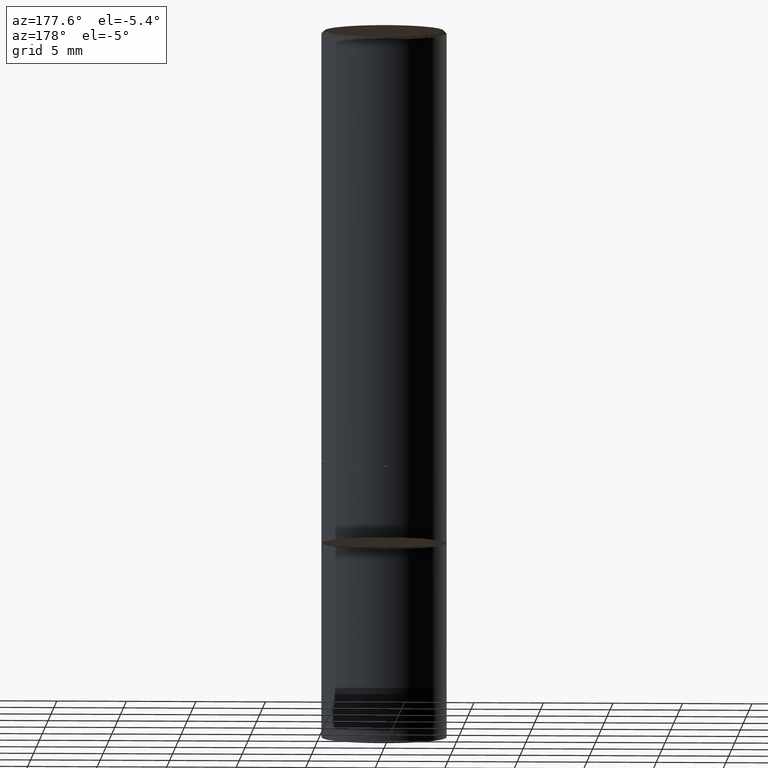
[diagram: clean part render]
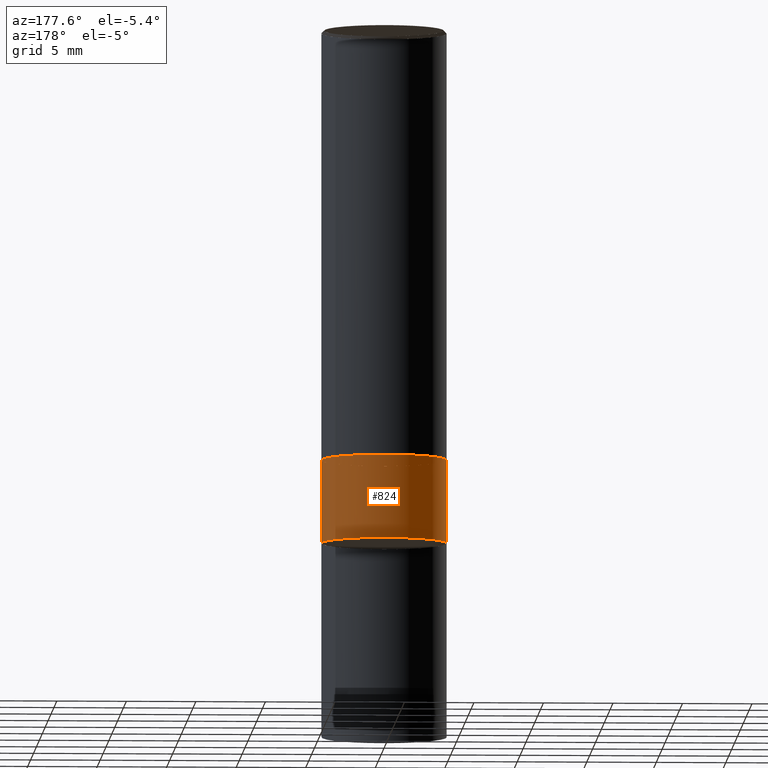
[diagram: same view with one face highlighted and labeled with its STEP entity id]
A machine part, auxiliary view. The second image highlights one B-rep face of the part: STEP entity #824.
In plain terms, the highlighted face is a freeform B-spline surface patch.
Its self-contained STEP definition (entity closure, byte-faithful):
#639=CARTESIAN_POINT('',(4.5,0.0,-6.0));
#640=CARTESIAN_POINT('',(4.5,4.5,-6.0));
#641=CARTESIAN_POINT('',(0.0,4.5,-6.0));
#642=CARTESIAN_POINT('',(-4.5,4.5,-6.0));
#643=CARTESIAN_POINT('',(-4.5,0.0,-6.0));
#650=CARTESIAN_POINT('',(4.5,0.0,0.0));
#651=CARTESIAN_POINT('',(4.5,4.5,0.0));
#652=CARTESIAN_POINT('',(0.0,4.5,0.0));
#653=CARTESIAN_POINT('',(-4.5,4.5,0.0));
#654=CARTESIAN_POINT('',(-4.5,0.0,0.0));
#805=(
BOUNDED_SURFACE()
B_SPLINE_SURFACE(1,2,(
(#639,#640,#641,#642,#643),
(#650,#651,#652,#653,#654)
), .UNSPECIFIED.,.F.,.F.,.F.)
B_SPLINE_SURFACE_WITH_KNOTS((2,2),(3,2,3),(
0.0,1.0),(
0.0,0.5,1.0), .UNSPECIFIED.)
GEOMETRIC_REPRESENTATION_ITEM()
RATIONAL_B_SPLINE_SURFACE(((1.0,0.707106781187,1.0,0.707106781187,1.0),
(1.0,0.707106781187,1.0,0.707106781187,1.0)
))
REPRESENTATION_ITEM('')
SURFACE()
);
#806=(
BOUNDED_CURVE()
B_SPLINE_CURVE(2,(#643,#642,#641,#640,#639),.UNSPECIFIED.,.F.,.F.)
B_SPLINE_CURVE_WITH_KNOTS((3,2,3),
(0.0,0.5,1.0),.UNSPECIFIED.)
CURVE()
GEOMETRIC_REPRESENTATION_ITEM()
RATIONAL_B_SPLINE_CURVE((1.0,0.707106781187,1.0,0.707106781187,1.0))
REPRESENTATION_ITEM('')
);
#807=(
BOUNDED_CURVE()
B_SPLINE_CURVE(1,(#639,#650),.UNSPECIFIED.,.F.,.F.)
B_SPLINE_CURVE_WITH_KNOTS((2,2),
(0.0,1.0),.UNSPECIFIED.)
CURVE()
GEOMETRIC_REPRESENTATION_ITEM()
RATIONAL_B_SPLINE_CURVE((1.0,1.0))
REPRESENTATION_ITEM('')
);
#808=(
BOUNDED_CURVE()
B_SPLINE_CURVE(2,(#650,#651,#652,#653,#654),.UNSPECIFIED.,.F.,.F.)
B_SPLINE_CURVE_WITH_KNOTS((3,2,3),
(0.0,0.5,1.0),.UNSPECIFIED.)
CURVE()
GEOMETRIC_REPRESENTATION_ITEM()
RATIONAL_B_SPLINE_CURVE((1.0,0.707106781187,1.0,0.707106781187,1.0))
REPRESENTATION_ITEM('')
);
#809=(
BOUNDED_CURVE()
B_SPLINE_CURVE(1,(#654,#643),.UNSPECIFIED.,.F.,.F.)
B_SPLINE_CURVE_WITH_KNOTS((2,2),
(0.0,1.0),.UNSPECIFIED.)
CURVE()
GEOMETRIC_REPRESENTATION_ITEM()
RATIONAL_B_SPLINE_CURVE((1.0,1.0))
REPRESENTATION_ITEM('')
);
#810=VERTEX_POINT('',#639);
#811=VERTEX_POINT('',#643);
#812=VERTEX_POINT('',#650);
#813=VERTEX_POINT('',#654);
#814=EDGE_CURVE('',#811,#810,#806,.T.);
#815=EDGE_CURVE('',#810,#812,#807,.T.);
#816=EDGE_CURVE('',#812,#813,#808,.T.);
#817=EDGE_CURVE('',#813,#811,#809,.T.);
#818=ORIENTED_EDGE('',*,*,#814,.T.);
#819=ORIENTED_EDGE('',*,*,#815,.T.);
#820=ORIENTED_EDGE('',*,*,#816,.T.);
#821=ORIENTED_EDGE('',*,*,#817,.T.);
#822=EDGE_LOOP('',(#818,#819,#820,#821));
#823=FACE_OUTER_BOUND('',#822,.T.);
#824=ADVANCED_FACE('',(#823),#805,.T.);